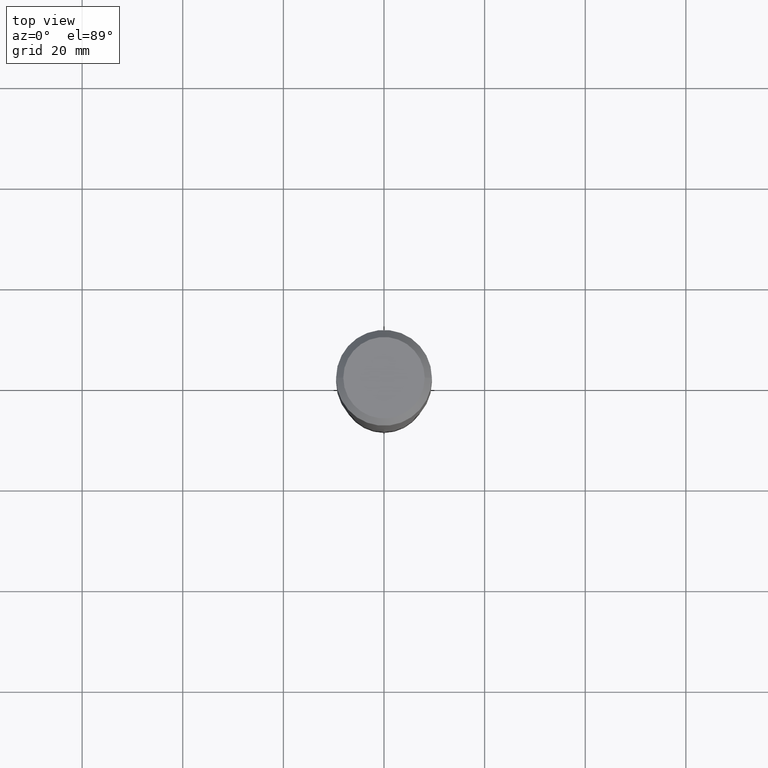
[diagram: clean part render]
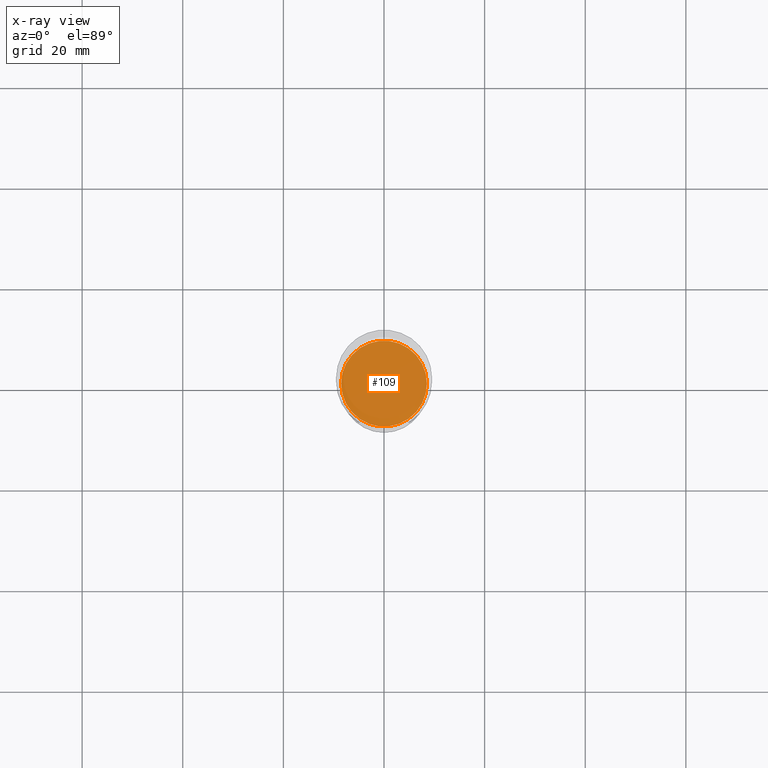
[diagram: x-ray — body ghosted, one internal face saturated and labeled with its STEP entity id]
A machine part, top view, then the same camera in x-ray: the body is ghosted and one INTERNAL B-rep face — a face not visible from any outside direction — is saturated and labeled: STEP entity #109.
In plain terms, the highlighted planar face has unit normal (-0, 0, 1).
Its self-contained STEP definition (entity closure, byte-faithful):
#49 = ORIENTED_EDGE ( 'NONE', *, *, #395, .F. ) ;
#50 = FACE_OUTER_BOUND ( 'NONE', #55, .T. ) ;
#55 = EDGE_LOOP ( 'NONE', ( #194, #49 ) ) ;
#62 = DIRECTION ( 'NONE',  ( -2.438088387897960049E-29, 3.491481338843145188E-15, 1.000000000000000000 ) ) ;
#71 = DIRECTION ( 'NONE',  ( 1.000000000000000000, -6.982962677686266711E-15, 0.000000000000000000 ) ) ;
#93 = CIRCLE ( 'NONE', #199, 0.3354500000000000259 ) ;
#109 = ADVANCED_FACE ( 'NONE', ( #50 ), #430, .F. ) ;
#122 = CARTESIAN_POINT ( 'NONE',  ( 6.534048103246065700E-29, -9.328888989255000747E-15, -2.671899999999999942 ) ) ;
#155 = AXIS2_PLACEMENT_3D ( 'NONE', #122, #62, #303 ) ;
#159 = VERTEX_POINT ( 'NONE', #483 ) ;
#175 = EDGE_CURVE ( 'NONE', #159, #403, #350, .T. ) ;
#194 = ORIENTED_EDGE ( 'NONE', *, *, #175, .F. ) ;
#199 = AXIS2_PLACEMENT_3D ( 'NONE', #219, #254, #329 ) ;
#219 = CARTESIAN_POINT ( 'NONE',  ( 6.534048103246065700E-29, -9.328888989255000747E-15, -2.671899999999999942 ) ) ;
#254 = DIRECTION ( 'NONE',  ( -2.445468806185136597E-29, 3.491481338843145583E-15, 1.000000000000000000 ) ) ;
#296 = CARTESIAN_POINT ( 'NONE',  ( -0.3354500000000000259, -6.942724154973632499E-15, -2.671899999999999942 ) ) ;
#303 = DIRECTION ( 'NONE',  ( 1.000000000000000000, -6.982962677686265922E-15, 4.876176775795935793E-29 ) ) ;
#329 = DIRECTION ( 'NONE',  ( 1.000000000000000000, -6.982962677686266711E-15, 0.000000000000000000 ) ) ;
#350 = CIRCLE ( 'NONE', #484, 0.3354500000000000259 ) ;
#395 = EDGE_CURVE ( 'NONE', #403, #159, #93, .T. ) ;
#403 = VERTEX_POINT ( 'NONE', #296 ) ;
#417 = DIRECTION ( 'NONE',  ( -2.445468806185136597E-29, 3.491481338843145583E-15, 1.000000000000000000 ) ) ;
#430 = PLANE ( 'NONE',  #155 ) ;
#446 = CARTESIAN_POINT ( 'NONE',  ( 6.534048103246065700E-29, -9.328888989255000747E-15, -2.671899999999999942 ) ) ;
#483 = CARTESIAN_POINT ( 'NONE',  ( 0.3354500000000000259, -1.167132381948485864E-14, -2.671899999999999942 ) ) ;
#484 = AXIS2_PLACEMENT_3D ( 'NONE', #446, #417, #71 ) ;